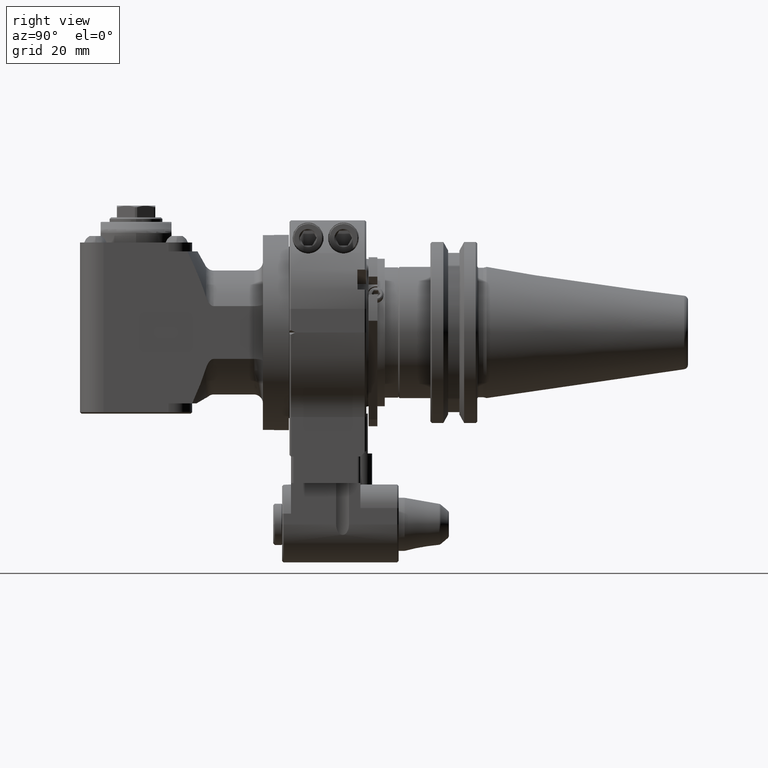
[diagram: clean part render]
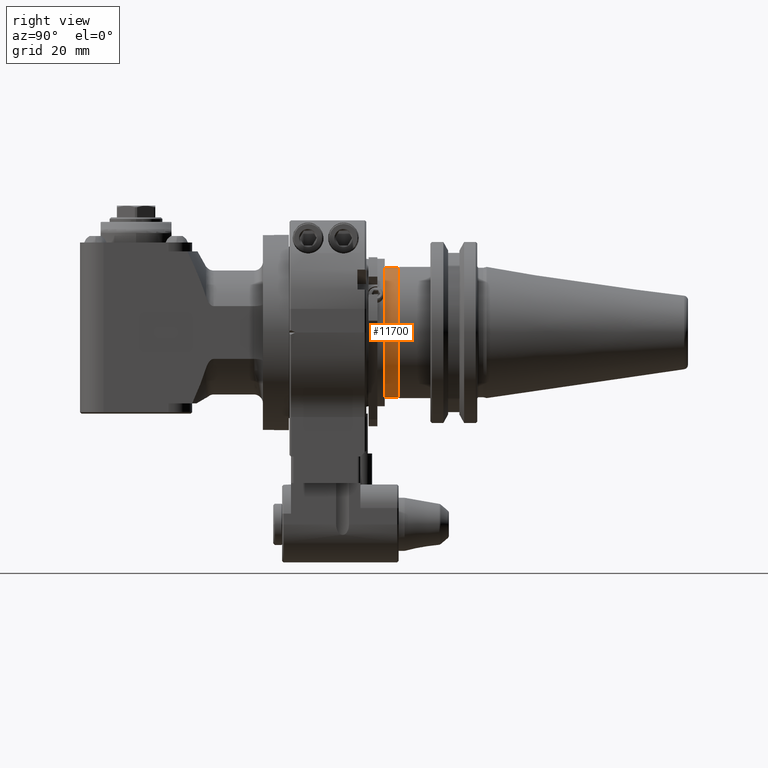
[diagram: same view with one face highlighted and labeled with its STEP entity id]
A machine part, right view. The second image highlights one B-rep face of the part: STEP entity #11700.
In plain terms, the highlighted cylindrical surface (bore or boss wall) has radius 22.225 mm, axis along (0, -1, 0).
Its self-contained STEP definition (entity closure, byte-faithful):
#938=LINE('',#19549,#1815);
#1815=VECTOR('',#15298,22.225);
#2314=CYLINDRICAL_SURFACE('',#12802,22.225);
#2914=FACE_OUTER_BOUND('',#3704,.T.);
#3704=EDGE_LOOP('',(#9328,#9329,#9330,#9331));
#4432=CIRCLE('',#12800,22.225);
#4434=CIRCLE('',#12803,22.225);
#5332=VERTEX_POINT('',#19542);
#5334=VERTEX_POINT('',#19547);
#6752=EDGE_CURVE('',#5332,#5332,#4432,.T.);
#6754=EDGE_CURVE('',#5334,#5334,#4434,.T.);
#6755=EDGE_CURVE('',#5334,#5332,#938,.T.);
#9328=ORIENTED_EDGE('',*,*,#6754,.F.);
#9329=ORIENTED_EDGE('',*,*,#6755,.T.);
#9330=ORIENTED_EDGE('',*,*,#6752,.F.);
#9331=ORIENTED_EDGE('',*,*,#6755,.F.);
#11700=ADVANCED_FACE('',(#2914),#2314,.T.);
#12800=AXIS2_PLACEMENT_3D('',#19543,#15290,#15291);
#12802=AXIS2_PLACEMENT_3D('',#19546,#15294,#15295);
#12803=AXIS2_PLACEMENT_3D('',#19548,#15296,#15297);
#15290=DIRECTION('center_axis',(0.,1.,0.));
#15291=DIRECTION('ref_axis',(1.,0.,0.));
#15294=DIRECTION('center_axis',(0.,-1.,0.));
#15295=DIRECTION('ref_axis',(1.,0.,0.));
#15296=DIRECTION('center_axis',(0.,-1.,0.));
#15297=DIRECTION('ref_axis',(-1.,0.,0.));
#15298=DIRECTION('',(0.,1.,0.));
#19542=CARTESIAN_POINT('',(-22.225,36.80000004466,0.));
#19543=CARTESIAN_POINT('Origin',(0.,36.80000004466,0.));
#19546=CARTESIAN_POINT('Origin',(0.,42.27500004466,0.));
#19547=CARTESIAN_POINT('',(-22.225,32.30000004466,0.));
#19548=CARTESIAN_POINT('Origin',(0.,32.30000004466,0.));
#19549=CARTESIAN_POINT('',(-22.225,42.27500004466,-2.72177751110499E-15));